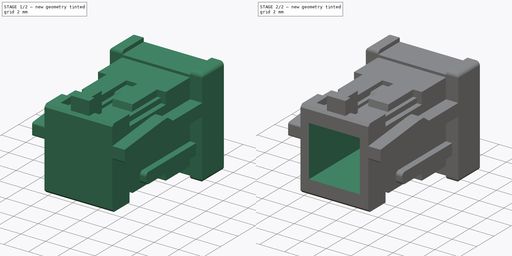
[diagram: build sequence overview — one tinted view per stage of 2, left to right]
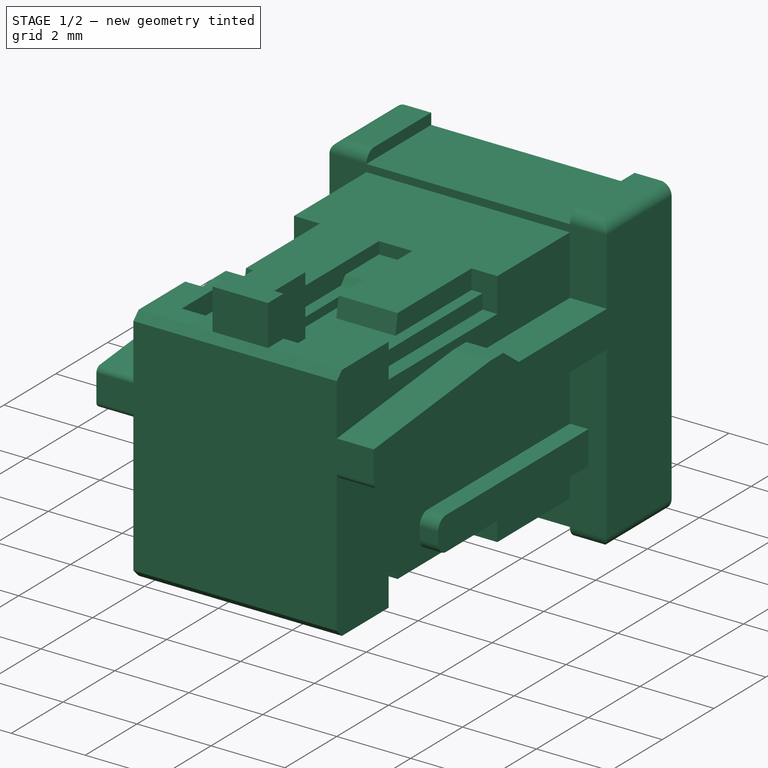
[diagram: stage 1 of 2 — iso view after this stage's code; geometry added in this stage tinted green]
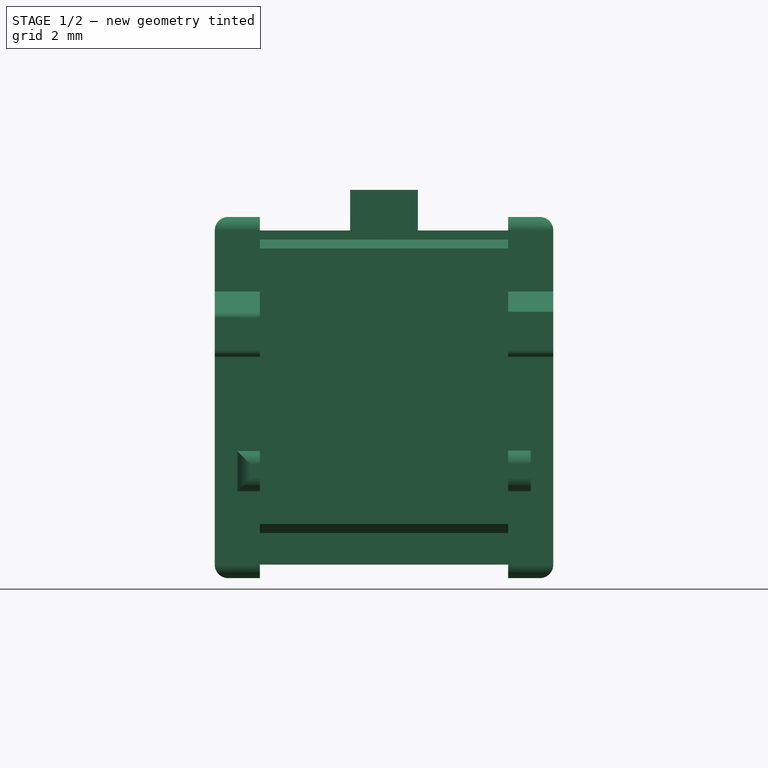
[diagram: stage 1 of 2 — front view after this stage's code; geometry added in this stage tinted green]
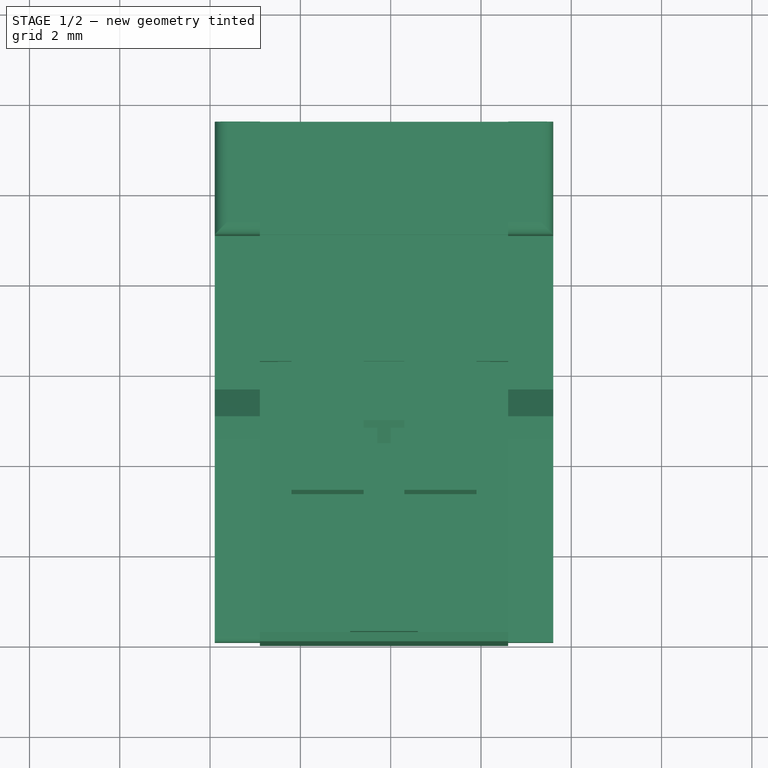
[diagram: stage 1 of 2 — top view after this stage's code; geometry added in this stage tinted green]
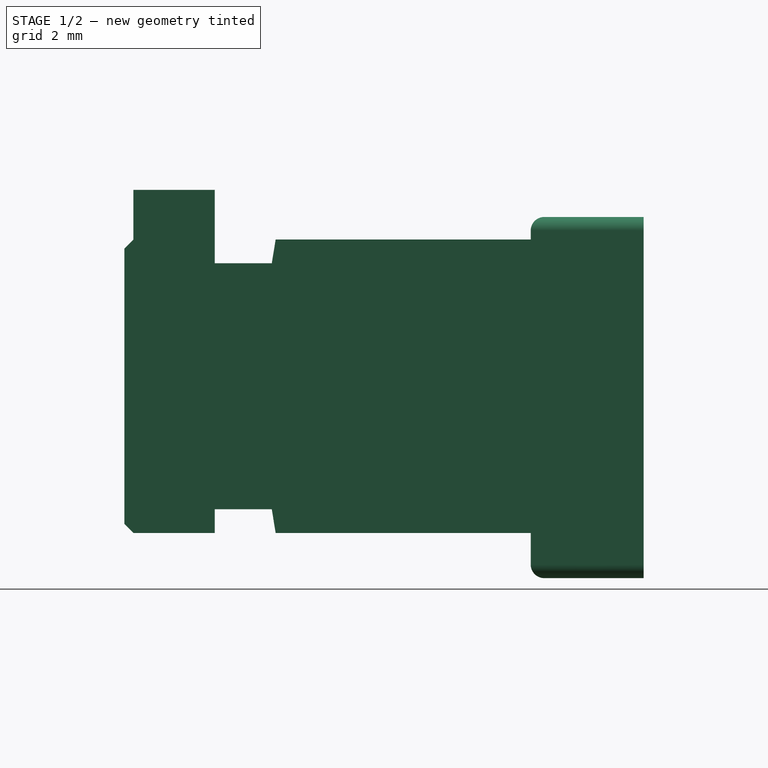
[diagram: stage 1 of 2 — right view after this stage's code; geometry added in this stage tinted green]
FCSTD DOCUMENT  (FreeCAD 1.0R39109 (Git))
Label: nozzle board connector
License: All rights reserved
LicenseURL: https://en.wikipedia.org/wiki/All_rights_reserved
objects: Part::Feature×1, PartDesign::FeatureBase×1, Sketcher::SketchObject×1, PartDesign::Pocket×1, PartDesign::Body×1
note: 9 computed .brp shape members not serialized (recipe doc carries the construction recipe); baked Part::Feature solids carry a one-line shape summary decoded from their .brp

FEATURE [Part::Feature] Part__Feature  label="DF1B-4DS-2.5RC"
  shape: bbox 7.5 x 11.5 x 8.6 mm, 123 faces (baked)
FEATURE [PartDesign::FeatureBase] BaseFeature
  BaseFeature = -> Part__Feature
  Suppressed = false
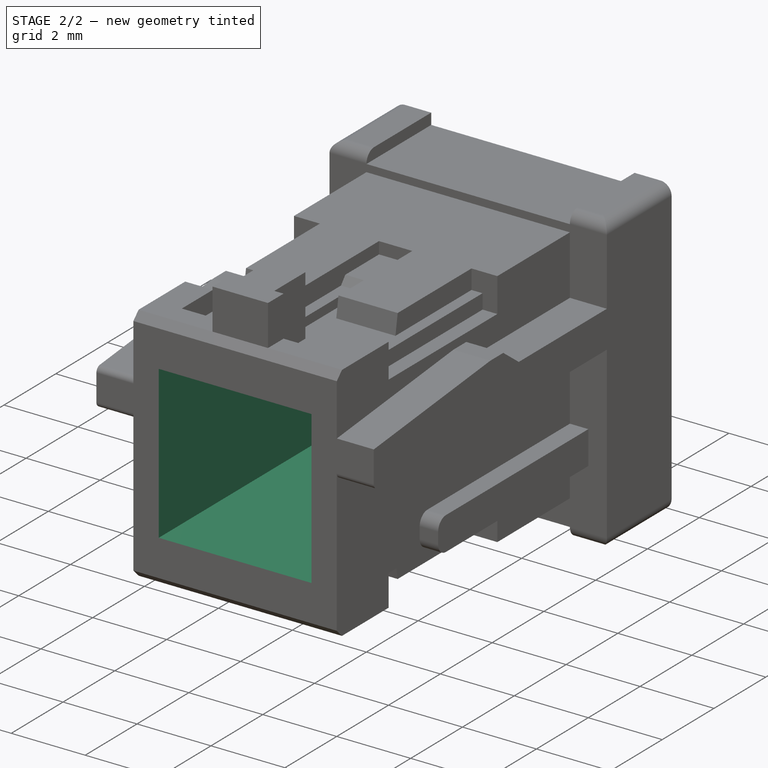
[diagram: stage 2 of 2 — iso view after this stage's code; geometry added in this stage tinted green]
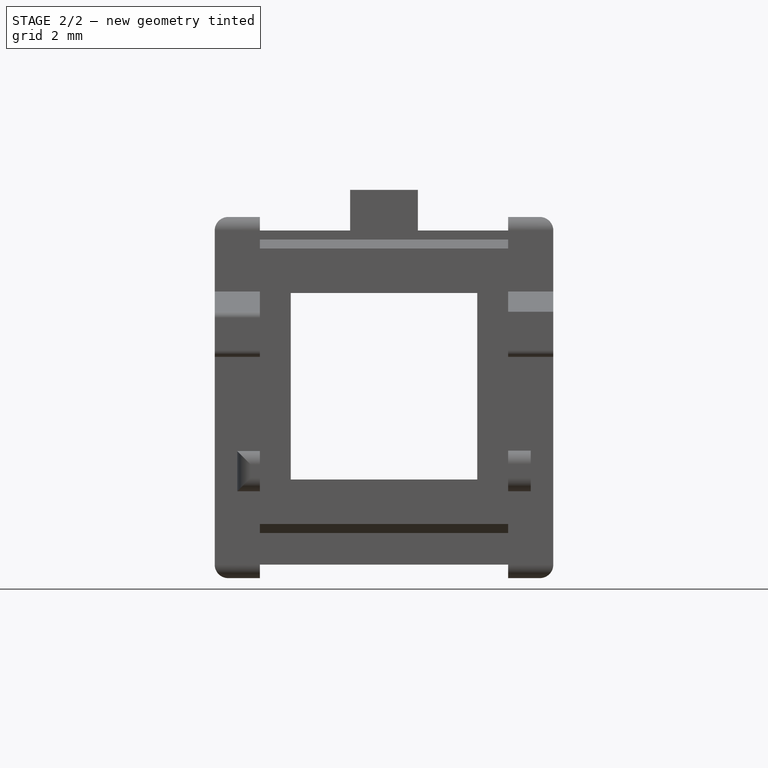
[diagram: stage 2 of 2 — front view after this stage's code; geometry added in this stage tinted green]
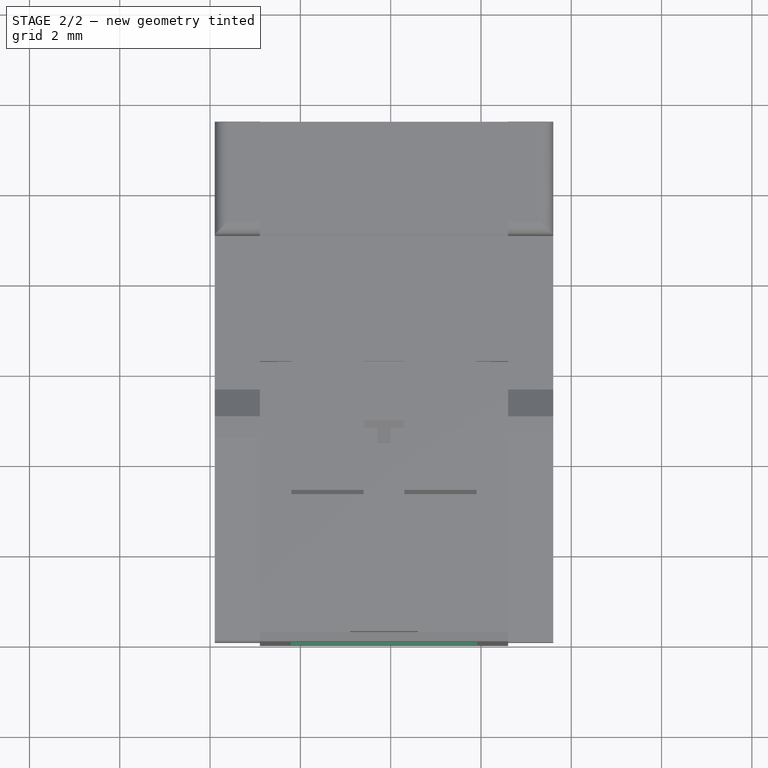
[diagram: stage 2 of 2 — top view after this stage's code; geometry added in this stage tinted green]
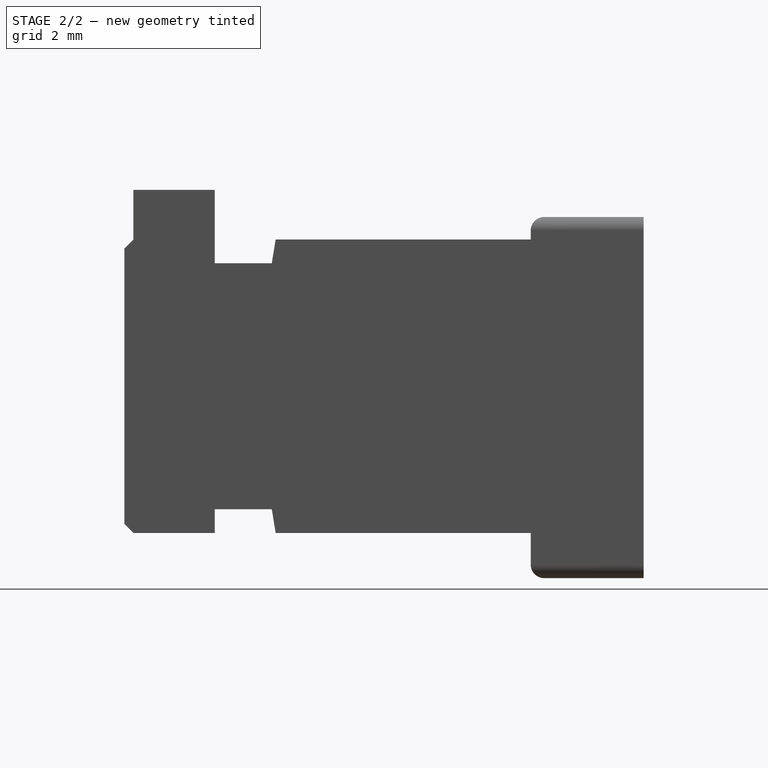
[diagram: stage 2 of 2 — right view after this stage's code; geometry added in this stage tinted green]
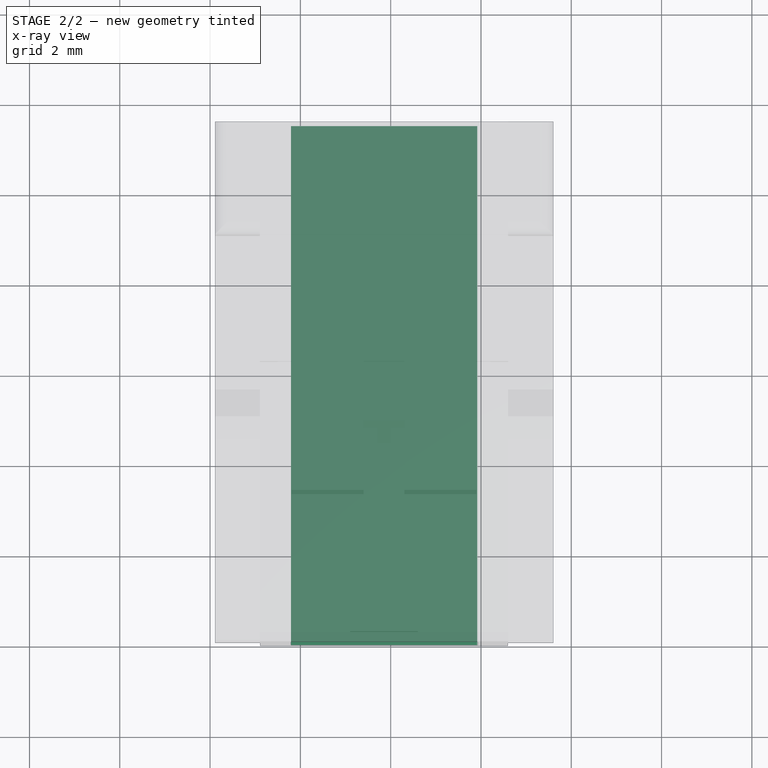
[diagram: stage 2 of 2 — x-ray composite at the top view; earlier geometry ghosted, this stage's added geometry solid]
FEATURE [Sketcher::SketchObject] Sketch
  ArcFitTolerance = 1e-06
  AttachmentSupport = -> [BaseFeature]
  ExternalGeometry = -> [BaseFeature]
  FullyConstrained = false
  MakeInternals = false
  MapMode = 5
  Placement = pos=(0,10,0) rot=(1,0,0;1.5708rad)
  sketch-geometry (5):
    g0: GeomPoint [constr] X=1.85214 Y=25.5619 Z=0
    g1: LineSegment StartX=-0.2123 StartY=27.6263 StartZ=0 EndX=-0.2123 EndY=23.4974 EndZ=0
    g2: LineSegment StartX=-0.2123 StartY=23.4974 StartZ=0 EndX=3.91657 EndY=23.4974 EndZ=0
    g3: LineSegment StartX=3.91657 StartY=23.4974 StartZ=0 EndX=3.91657 EndY=27.6263 EndZ=0
    g4: LineSegment StartX=3.91657 StartY=27.6263 StartZ=0 EndX=-0.2123 EndY=27.6263 EndZ=0
  constraints (11):
    c: Symmetric(g-4,g-3,g0)
    c: Coincident(g1,g2)
    c: Coincident(g2,g3)
    c: Coincident(g3,g4)
    c: Coincident(g4,g1)
    c: Vertical(g1)
    c: Vertical(g3)
    c: Horizontal(g2)
    c: Horizontal(g4)
    c: Equal(g2,g3)
    c: Symmetric(g1,g2,g0)
FEATURE [PartDesign::Pocket] Pocket
  BaseFeature = -> BaseFeature
  Direction = (0,1,-2e-16)
  Length = 5
  Length2 = 5
  Profile = -> Sketch
  ReferenceAxis = -> Sketch [N_Axis]
  Refine = true
  Suppressed = false
  Type = 1
FEATURE [PartDesign::Body] Body
  AllowCompound = false
  BaseFeature = -> Part__Feature
  Group = -> [BaseFeature,Sketch,Pocket]
  Origin = -> Origin
  Tip = -> Pocket
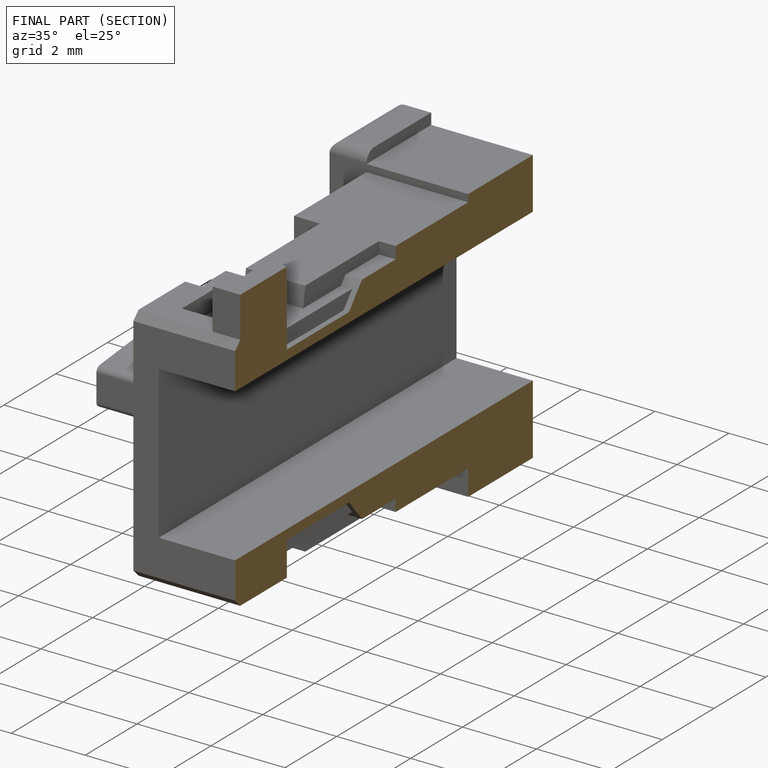
[diagram: finished part — half-section view (interior)]
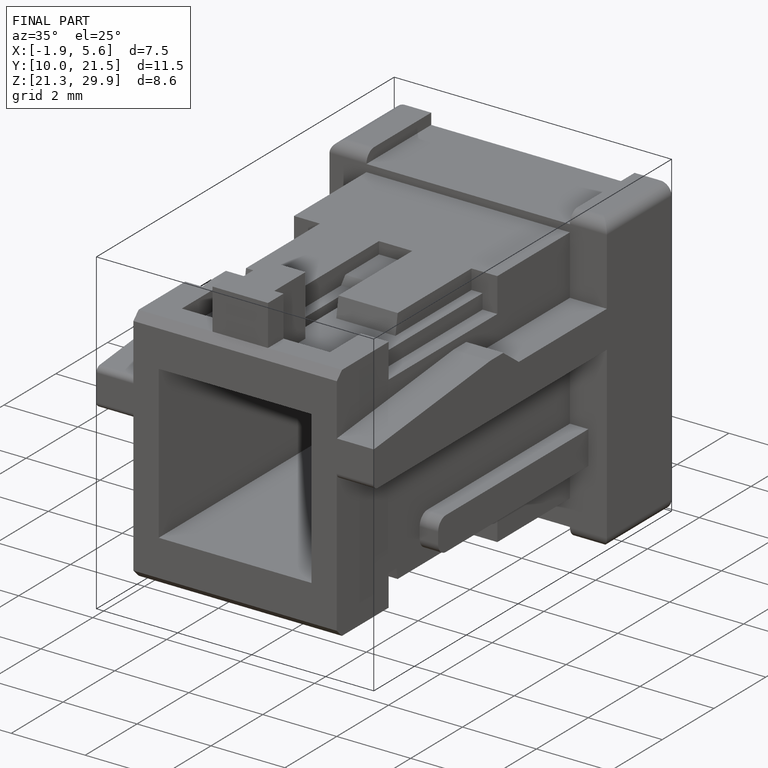
[diagram: finished part — iso view with bounding-box wireframe]
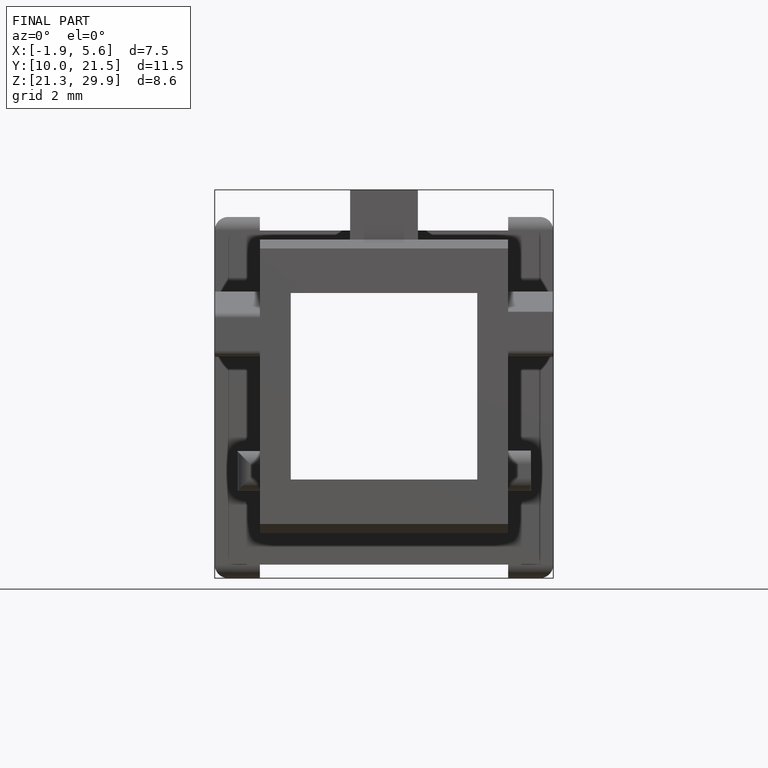
[diagram: finished part — front view with bounding-box wireframe]
